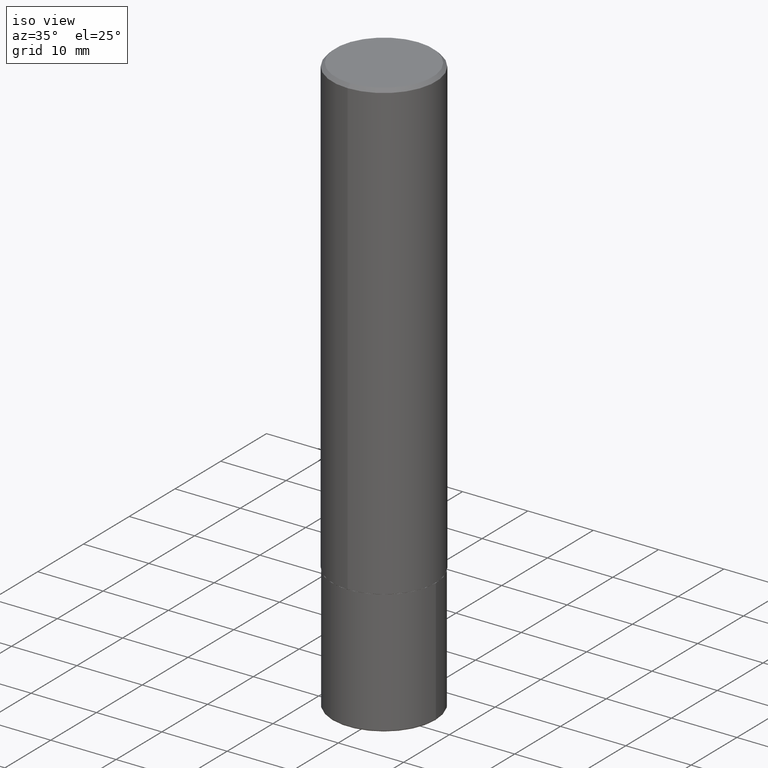
[diagram: clean part render]
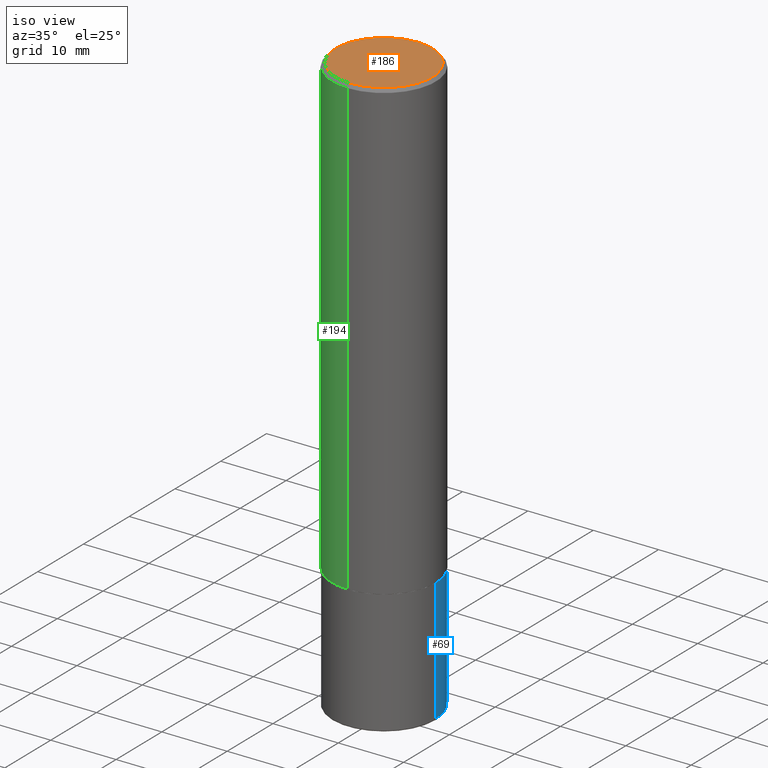
[diagram: same view with three faces highlighted in distinct colors, each labeled with its STEP entity id]
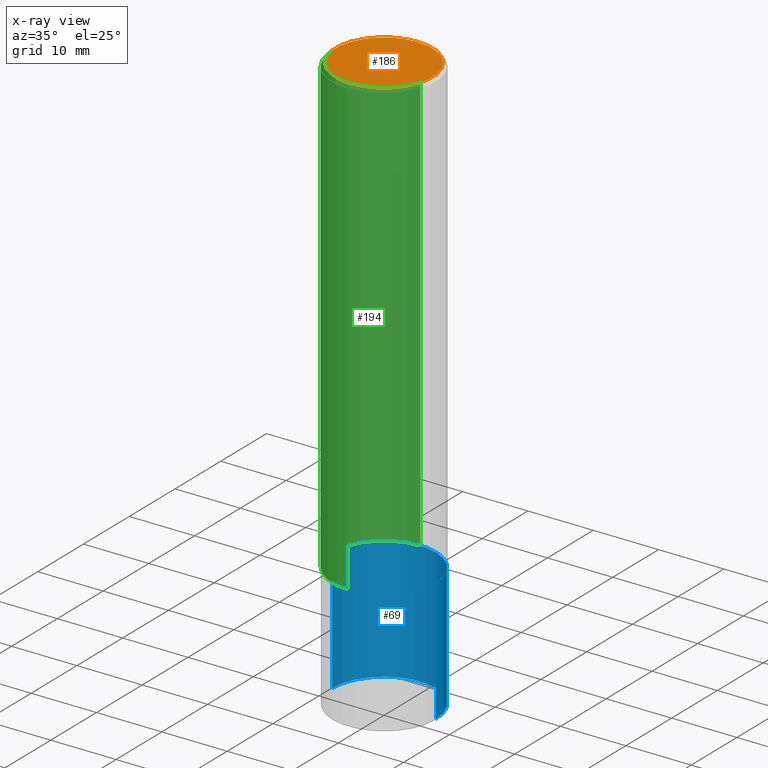
[diagram: x-ray of the same camera — body ghosted, the three highlighted faces saturated]
A machine part, iso view with three faces highlighted in distinct colors.
The next image is the same camera in x-ray (body ghosted, the three faces saturated) — at least one of them is partly hidden behind the body in this view.
Their STEP definitions:

[orange] entity #186 — the highlighted planar face has unit normal (0, -0, -1).
#18 = AXIS2_PLACEMENT_3D ( 'NONE', #312, #26, #175 ) ;
#26 = DIRECTION ( 'NONE',  ( 2.444797333483953089E-29, -3.492442925969092620E-15, -1.000000000000000000 ) ) ;
#35 = AXIS2_PLACEMENT_3D ( 'NONE', #254, #288, #400 ) ;
#36 = AXIS2_PLACEMENT_3D ( 'NONE', #393, #225, #70 ) ;
#63 = CIRCLE ( 'NONE', #35, 0.2924999999999997602 ) ;
#64 = CIRCLE ( 'NONE', #36, 0.2924999999999997602 ) ;
#70 = DIRECTION ( 'NONE',  ( -6.982962677686266711E-15, -1.000000000000000000, 3.492442925969092620E-15 ) ) ;
#76 = ORIENTED_EDGE ( 'NONE', *, *, #168, .T. ) ;
#102 = ORIENTED_EDGE ( 'NONE', *, *, #397, .T. ) ;
#110 = CARTESIAN_POINT ( 'NONE',  ( 2.112346210000094260E-15, 0.2924999999999997602, -9.401565542997115154E-16 ) ) ;
#150 = PLANE ( 'NONE',  #18 ) ;
#168 = EDGE_CURVE ( 'NONE', #357, #353, #63, .T. ) ;
#175 = DIRECTION ( 'NONE',  ( 6.982962677686265922E-15, 1.000000000000000000, -3.492442925969092620E-15 ) ) ;
#186 = ADVANCED_FACE ( 'NONE', ( #192 ), #150, .F. ) ;
#192 = FACE_OUTER_BOUND ( 'NONE', #320, .T. ) ;
#225 = DIRECTION ( 'NONE',  ( -2.444797333483953649E-29, 3.492442925969092226E-15, 1.000000000000000000 ) ) ;
#254 = CARTESIAN_POINT ( 'NONE',  ( -1.989649451711856503E-45, 2.842254880443227287E-31, 8.138300154624720232E-17 ) ) ;
#288 = DIRECTION ( 'NONE',  ( -2.444797333483953649E-29, 3.492442925969092226E-15, 1.000000000000000000 ) ) ;
#312 = CARTESIAN_POINT ( 'NONE',  ( 2.042516583223231356E-15, 0.2924999999999997602, -9.808480550728350426E-16 ) ) ;
#320 = EDGE_LOOP ( 'NONE', ( #76, #102 ) ) ;
#353 = VERTEX_POINT ( 'NONE', #405 ) ;
#357 = VERTEX_POINT ( 'NONE', #110 ) ;
#393 = CARTESIAN_POINT ( 'NONE',  ( -1.989649451711856503E-45, 2.842254880443227287E-31, 8.138300154624720232E-17 ) ) ;
#397 = EDGE_CURVE ( 'NONE', #353, #357, #64, .T. ) ;
#400 = DIRECTION ( 'NONE',  ( -6.982962677686266711E-15, -1.000000000000000000, 3.492442925969092620E-15 ) ) ;
#405 = CARTESIAN_POINT ( 'NONE',  ( -2.075300644325886704E-15, -0.2924999999999997602, 1.102922557392206019E-15 ) ) ;

[blue] entity #69 — the highlighted cylindrical surface (partial cylindrical patch) has radius 7.9375 mm, axis along (-0, 0, 1).
#5 = EDGE_CURVE ( 'NONE', #340, #206, #324, .T. ) ;
#11 = CARTESIAN_POINT ( 'NONE',  ( 0.3125000000000000000, -2.182175836776958347E-15, 1.523805242436230075E-29 ) ) ;
#34 = EDGE_CURVE ( 'NONE', #65, #398, #59, .T. ) ;
#56 = CARTESIAN_POINT ( 'NONE',  ( 0.3125000000000000000, -1.178374951859560978E-14, -2.750000000000000000 ) ) ;
#59 = CIRCLE ( 'NONE', #386, 0.3125000000000000000 ) ;
#65 = VERTEX_POINT ( 'NONE', #56 ) ;
#69 = ADVANCED_FACE ( 'NONE', ( #409 ), #384, .T. ) ;
#72 = DIRECTION ( 'NONE',  ( -2.445468806185136597E-29, 3.491481338843145583E-15, 1.000000000000000000 ) ) ;
#80 = ORIENTED_EDGE ( 'NONE', *, *, #34, .F. ) ;
#87 = VECTOR ( 'NONE', #133, 39.37007874015748143 ) ;
#109 = CARTESIAN_POINT ( 'NONE',  ( -0.3124999999999998890, -9.964823823312263034E-15, -3.489999999999999769 ) ) ;
#116 = AXIS2_PLACEMENT_3D ( 'NONE', #279, #165, #179 ) ;
#117 = CARTESIAN_POINT ( 'NONE',  ( 6.725039217009124520E-29, -9.601573681818649859E-15, -2.750000000000000000 ) ) ;
#129 = EDGE_LOOP ( 'NONE', ( #333, #138, #80, #235 ) ) ;
#133 = DIRECTION ( 'NONE',  ( -2.445468806185136877E-29, 3.491481338843145188E-15, 1.000000000000000000 ) ) ;
#138 = ORIENTED_EDGE ( 'NONE', *, *, #147, .T. ) ;
#147 = EDGE_CURVE ( 'NONE', #206, #398, #245, .T. ) ;
#165 = DIRECTION ( 'NONE',  ( -2.445468806185136597E-29, 3.491481338843145583E-15, 1.000000000000000000 ) ) ;
#179 = DIRECTION ( 'NONE',  ( 1.000000000000000000, -6.982962677686266711E-15, 4.876176775795936353E-29 ) ) ;
#197 = CARTESIAN_POINT ( 'NONE',  ( -0.3125000000000000000, -8.672975727940299906E-15, -2.750000000000000000 ) ) ;
#201 = DIRECTION ( 'NONE',  ( 1.000000000000000000, -6.982962677686269077E-15, 0.000000000000000000 ) ) ;
#206 = VERTEX_POINT ( 'NONE', #109 ) ;
#213 = VECTOR ( 'NONE', #248, 39.37007874015748143 ) ;
#224 = AXIS2_PLACEMENT_3D ( 'NONE', #230, #72, #201 ) ;
#230 = CARTESIAN_POINT ( 'NONE',  ( 8.534686133586126543E-29, -1.218526987256257612E-14, -3.489999999999999769 ) ) ;
#235 = ORIENTED_EDGE ( 'NONE', *, *, #282, .F. ) ;
#244 = DIRECTION ( 'NONE',  ( -2.445468806185136597E-29, 3.491481338843145583E-15, 1.000000000000000000 ) ) ;
#245 = LINE ( 'NONE', #414, #213 ) ;
#248 = DIRECTION ( 'NONE',  ( -2.445468806185136877E-29, 3.491481338843145188E-15, 1.000000000000000000 ) ) ;
#273 = CARTESIAN_POINT ( 'NONE',  ( 0.3124999999999998890, -1.436744570933953446E-14, -3.489999999999999769 ) ) ;
#279 = CARTESIAN_POINT ( 'NONE',  ( 0.000000000000000000, 0.000000000000000000, 0.000000000000000000 ) ) ;
#282 = EDGE_CURVE ( 'NONE', #340, #65, #332, .T. ) ;
#324 = CIRCLE ( 'NONE', #224, 0.3125000000000000000 ) ;
#332 = LINE ( 'NONE', #11, #87 ) ;
#333 = ORIENTED_EDGE ( 'NONE', *, *, #5, .T. ) ;
#340 = VERTEX_POINT ( 'NONE', #273 ) ;
#342 = DIRECTION ( 'NONE',  ( 1.000000000000000000, -6.982962677686269077E-15, 0.000000000000000000 ) ) ;
#384 = CYLINDRICAL_SURFACE ( 'NONE', #116, 0.3125000000000000000 ) ;
#386 = AXIS2_PLACEMENT_3D ( 'NONE', #117, #244, #342 ) ;
#398 = VERTEX_POINT ( 'NONE', #197 ) ;
#409 = FACE_OUTER_BOUND ( 'NONE', #129, .T. ) ;
#414 = CARTESIAN_POINT ( 'NONE',  ( -0.3125000000000000000, 2.220446049250313081E-15, -1.537167215704658232E-29 ) ) ;

[green] entity #194 — the highlighted cylindrical surface (partial cylindrical patch) has radius 7.9375 mm, axis along (-0, 0, 1).
#29 = EDGE_CURVE ( 'NONE', #164, #306, #370, .T. ) ;
#30 = AXIS2_PLACEMENT_3D ( 'NONE', #404, #51, #368 ) ;
#37 = EDGE_LOOP ( 'NONE', ( #92, #403, #373, #302 ) ) ;
#50 = LINE ( 'NONE', #169, #107 ) ;
#51 = DIRECTION ( 'NONE',  ( -2.444797333483953649E-29, 3.492442925969092226E-15, 1.000000000000000000 ) ) ;
#57 = EDGE_CURVE ( 'NONE', #130, #164, #50, .T. ) ;
#71 = VERTEX_POINT ( 'NONE', #389 ) ;
#74 = CARTESIAN_POINT ( 'NONE',  ( 6.720747869747387921E-29, -9.600725603489034077E-15, -2.749000000000000110 ) ) ;
#79 = DIRECTION ( 'NONE',  ( -6.982962677686265922E-15, -1.000000000000000000, 3.496765431890253764E-15 ) ) ;
#92 = ORIENTED_EDGE ( 'NONE', *, *, #57, .F. ) ;
#107 = VECTOR ( 'NONE', #307, 39.37007874015748143 ) ;
#121 = AXIS2_PLACEMENT_3D ( 'NONE', #74, #372, #79 ) ;
#130 = VERTEX_POINT ( 'NONE', #382 ) ;
#135 = EDGE_CURVE ( 'NONE', #71, #306, #272, .T. ) ;
#151 = CIRCLE ( 'NONE', #121, 0.3125000000000002776 ) ;
#164 = VERTEX_POINT ( 'NONE', #317 ) ;
#169 = CARTESIAN_POINT ( 'NONE',  ( 2.220446049250313081E-15, 0.3125000000000000555, -1.091388414365341542E-15 ) ) ;
#170 = FACE_OUTER_BOUND ( 'NONE', #37, .T. ) ;
#177 = CARTESIAN_POINT ( 'NONE',  ( 4.889594666967924290E-31, -6.984885851938207279E-17, -0.02000000000000006981 ) ) ;
#194 = ADVANCED_FACE ( 'NONE', ( #170 ), #331, .T. ) ;
#222 = EDGE_CURVE ( 'NONE', #130, #71, #151, .T. ) ;
#238 = DIRECTION ( 'NONE',  ( -2.444797333483953649E-29, 3.492442925969092620E-15, 1.000000000000000000 ) ) ;
#247 = DIRECTION ( 'NONE',  ( -2.444797333483953649E-29, 3.492442925969092226E-15, 1.000000000000000000 ) ) ;
#272 = LINE ( 'NONE', #408, #381 ) ;
#289 = CARTESIAN_POINT ( 'NONE',  ( -2.143905624303602036E-15, -0.3124999999999999445, -0.01999999999999897693 ) ) ;
#302 = ORIENTED_EDGE ( 'NONE', *, *, #29, .F. ) ;
#306 = VERTEX_POINT ( 'NONE', #289 ) ;
#307 = DIRECTION ( 'NONE',  ( -2.444797333483953649E-29, 3.492442925969092620E-15, 1.000000000000000000 ) ) ;
#311 = DIRECTION ( 'NONE',  ( -6.982962677686265133E-15, -1.000000000000000000, 3.496765431890258103E-15 ) ) ;
#317 = CARTESIAN_POINT ( 'NONE',  ( 2.182175836776957558E-15, 0.3124999999999998335, -0.02000000000000116268 ) ) ;
#331 = CYLINDRICAL_SURFACE ( 'NONE', #30, 0.3125000000000000555 ) ;
#345 = AXIS2_PLACEMENT_3D ( 'NONE', #177, #247, #311 ) ;
#368 = DIRECTION ( 'NONE',  ( -6.982962677686266711E-15, -1.000000000000000000, 3.492442925969092226E-15 ) ) ;
#370 = CIRCLE ( 'NONE', #345, 0.3124999999999998890 ) ;
#372 = DIRECTION ( 'NONE',  ( -2.444797333483953649E-29, 3.492442925969092226E-15, 1.000000000000000000 ) ) ;
#373 = ORIENTED_EDGE ( 'NONE', *, *, #135, .T. ) ;
#381 = VECTOR ( 'NONE', #238, 39.37007874015748143 ) ;
#382 = CARTESIAN_POINT ( 'NONE',  ( 2.220446049250347791E-15, 0.3124999999999906741, -2.749000000000000998 ) ) ;
#389 = CARTESIAN_POINT ( 'NONE',  ( -2.182175836776892872E-15, -0.3125000000000099365, -2.748999999999999222 ) ) ;
#403 = ORIENTED_EDGE ( 'NONE', *, *, #222, .T. ) ;
#404 = CARTESIAN_POINT ( 'NONE',  ( 0.000000000000000000, 0.000000000000000000, 0.000000000000000000 ) ) ;
#408 = CARTESIAN_POINT ( 'NONE',  ( -2.182175836776958741E-15, -0.3125000000000000555, 1.091388414365341542E-15 ) ) ;